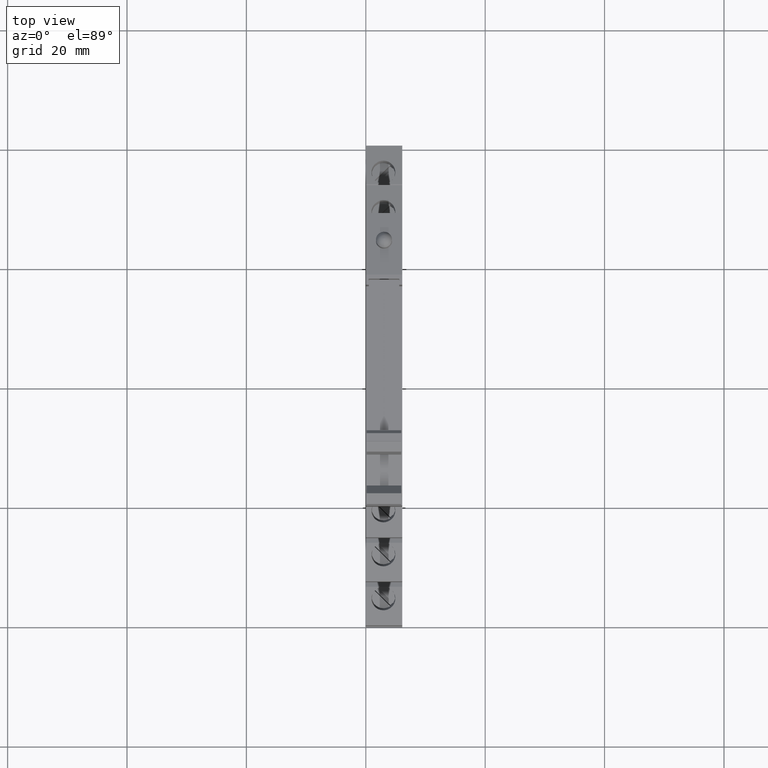
[diagram: clean part render]
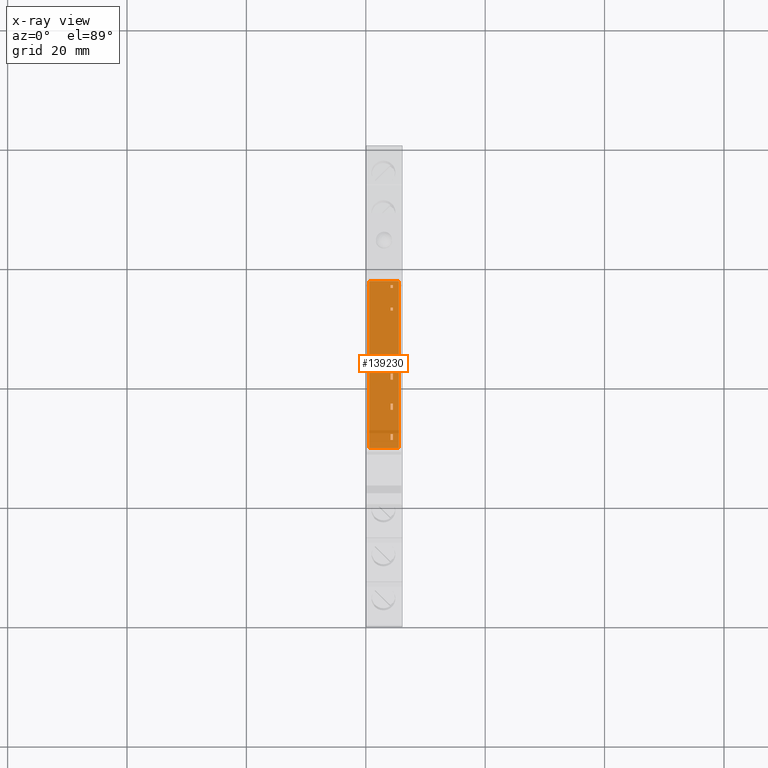
[diagram: x-ray — body ghosted, one internal face saturated and labeled with its STEP entity id]
A machine part, top view, then the same camera in x-ray: the body is ghosted and one INTERNAL B-rep face — a face not visible from any outside direction — is saturated and labeled: STEP entity #139230.
In plain terms, the highlighted planar face has unit normal (-0, -0, -1).
Its self-contained STEP definition (entity closure, byte-faithful):
#137140=CARTESIAN_POINT('',(0.,0.,0.));
#137150=DIRECTION('',(0.,0.,1.));
#137160=DIRECTION('',(1.,0.,0.));
#137170=AXIS2_PLACEMENT_3D('',#137140,#137150,#137160);
#137180=PLANE('',#137170);
#137190=CARTESIAN_POINT('',(0.,-1.4,0.));
#137200=DIRECTION('',(-1.,4.67566793217254E-17,0.));
#137210=VECTOR('',#137200,1.);
#137220=LINE('',#137190,#137210);
#137230=CARTESIAN_POINT('',(27.4499999999999,-1.4,0.));
#137240=VERTEX_POINT('',#137230);
#137250=CARTESIAN_POINT('',(26.9499999999999,-1.4,0.));
#137260=VERTEX_POINT('',#137250);
#137270=EDGE_CURVE('',#137240,#137260,#137220,.T.);
#137280=ORIENTED_EDGE('',*,*,#137270,.T.);
#137290=CARTESIAN_POINT('',(27.4499999999999,0.,0.));
#137300=DIRECTION('',(4.67566793217254E-17,1.,0.));
#137310=VECTOR('',#137300,1.);
#137320=LINE('',#137290,#137310);
#137330=CARTESIAN_POINT('',(27.4499999999999,-1.,0.));
#137340=VERTEX_POINT('',#137330);
#137350=EDGE_CURVE('',#137240,#137340,#137320,.T.);
#137360=ORIENTED_EDGE('',*,*,#137350,.F.);
#137370=CARTESIAN_POINT('',(0.,-1.,0.));
#137380=DIRECTION('',(1.,-4.67566793217254E-17,0.));
#137390=VECTOR('',#137380,1.);
#137400=LINE('',#137370,#137390);
#137410=CARTESIAN_POINT('',(26.9499999999999,-1.,0.));
#137420=VERTEX_POINT('',#137410);
#137430=EDGE_CURVE('',#137420,#137340,#137400,.T.);
#137440=ORIENTED_EDGE('',*,*,#137430,.T.);
#137450=CARTESIAN_POINT('',(26.9499999999999,0.,0.));
#137460=DIRECTION('',(-4.67566793217254E-17,-1.,0.));
#137470=VECTOR('',#137460,1.);
#137480=LINE('',#137450,#137470);
#137490=EDGE_CURVE('',#137420,#137260,#137480,.T.);
#137500=ORIENTED_EDGE('',*,*,#137490,.F.);
#137510=EDGE_LOOP('',(#137500,#137440,#137360,#137280));
#137520=FACE_BOUND('',#137510,.T.);
#137530=CARTESIAN_POINT('',(0.,-1.,0.));
#137540=DIRECTION('',(1.,-4.67566793217254E-17,0.));
#137550=VECTOR('',#137540,1.);
#137560=LINE('',#137530,#137550);
#137570=CARTESIAN_POINT('',(6.53999999999992,-1.,0.));
#137580=VERTEX_POINT('',#137570);
#137590=CARTESIAN_POINT('',(7.53999999999992,-1.,0.));
#137600=VERTEX_POINT('',#137590);
#137610=EDGE_CURVE('',#137580,#137600,#137560,.T.);
#137620=ORIENTED_EDGE('',*,*,#137610,.T.);
#137630=CARTESIAN_POINT('',(6.53999999999992,0.,0.));
#137640=DIRECTION('',(-4.67566793217254E-17,-1.,0.));
#137650=VECTOR('',#137640,1.);
#137660=LINE('',#137630,#137650);
#137670=CARTESIAN_POINT('',(6.53999999999992,-1.4,0.));
#137680=VERTEX_POINT('',#137670);
#137690=EDGE_CURVE('',#137580,#137680,#137660,.T.);
#137700=ORIENTED_EDGE('',*,*,#137690,.F.);
#137710=CARTESIAN_POINT('',(0.,-1.4,0.));
#137720=DIRECTION('',(-1.,4.67566793217254E-17,0.));
#137730=VECTOR('',#137720,1.);
#137740=LINE('',#137710,#137730);
#137750=CARTESIAN_POINT('',(7.53999999999992,-1.4,0.));
#137760=VERTEX_POINT('',#137750);
#137770=EDGE_CURVE('',#137760,#137680,#137740,.T.);
#137780=ORIENTED_EDGE('',*,*,#137770,.T.);
#137790=CARTESIAN_POINT('',(7.53999999999992,0.,0.));
#137800=DIRECTION('',(4.67566793217254E-17,1.,0.));
#137810=VECTOR('',#137800,1.);
#137820=LINE('',#137790,#137810);
#137830=EDGE_CURVE('',#137760,#137600,#137820,.T.);
#137840=ORIENTED_EDGE('',*,*,#137830,.F.);
#137850=EDGE_LOOP('',(#137840,#137780,#137700,#137620));
#137860=FACE_BOUND('',#137850,.T.);
#137870=CARTESIAN_POINT('',(0.,-1.,0.));
#137880=DIRECTION('',(1.,-4.67566793217254E-17,0.));
#137890=VECTOR('',#137880,1.);
#137900=LINE('',#137870,#137890);
#137910=CARTESIAN_POINT('',(1.50000000000007,-1.,0.));
#137920=VERTEX_POINT('',#137910);
#137930=CARTESIAN_POINT('',(2.50000000000007,-1.,0.));
#137940=VERTEX_POINT('',#137930);
#137950=EDGE_CURVE('',#137920,#137940,#137900,.T.);
#137960=ORIENTED_EDGE('',*,*,#137950,.T.);
#137970=CARTESIAN_POINT('',(1.50000000000007,0.,0.));
#137980=DIRECTION('',(-4.67566793217254E-17,-1.,0.));
#137990=VECTOR('',#137980,1.);
#138000=LINE('',#137970,#137990);
#138010=CARTESIAN_POINT('',(1.50000000000007,-1.4,0.));
#138020=VERTEX_POINT('',#138010);
#138030=EDGE_CURVE('',#137920,#138020,#138000,.T.);
#138040=ORIENTED_EDGE('',*,*,#138030,.F.);
#138050=CARTESIAN_POINT('',(0.,-1.4,0.));
#138060=DIRECTION('',(-1.,4.67566793217254E-17,0.));
#138070=VECTOR('',#138060,1.);
#138080=LINE('',#138050,#138070);
#138090=CARTESIAN_POINT('',(2.50000000000007,-1.4,0.));
#138100=VERTEX_POINT('',#138090);
#138110=EDGE_CURVE('',#138100,#138020,#138080,.T.);
#138120=ORIENTED_EDGE('',*,*,#138110,.T.);
#138130=CARTESIAN_POINT('',(2.50000000000007,0.,0.));
#138140=DIRECTION('',(4.67566793217254E-17,1.,0.));
#138150=VECTOR('',#138140,1.);
#138160=LINE('',#138130,#138150);
#138170=EDGE_CURVE('',#138100,#137940,#138160,.T.);
#138180=ORIENTED_EDGE('',*,*,#138170,.F.);
#138190=EDGE_LOOP('',(#138180,#138120,#138040,#137960));
#138200=FACE_BOUND('',#138190,.T.);
#138210=CARTESIAN_POINT('',(11.5799999999999,0.,0.));
#138220=DIRECTION('',(-4.67566793217254E-17,-1.,0.));
#138230=VECTOR('',#138220,1.);
#138240=LINE('',#138210,#138230);
#138250=CARTESIAN_POINT('',(11.5799999999999,-1.,0.));
#138260=VERTEX_POINT('',#138250);
#138270=CARTESIAN_POINT('',(11.5799999999999,-1.4,0.));
#138280=VERTEX_POINT('',#138270);
#138290=EDGE_CURVE('',#138260,#138280,#138240,.T.);
#138300=ORIENTED_EDGE('',*,*,#138290,.F.);
#138310=CARTESIAN_POINT('',(0.,-1.4,0.));
#138320=DIRECTION('',(-1.,4.67566793217254E-17,0.));
#138330=VECTOR('',#138320,1.);
#138340=LINE('',#138310,#138330);
#138350=CARTESIAN_POINT('',(12.5799999999999,-1.4,0.));
#138360=VERTEX_POINT('',#138350);
#138370=EDGE_CURVE('',#138360,#138280,#138340,.T.);
#138380=ORIENTED_EDGE('',*,*,#138370,.T.);
#138390=CARTESIAN_POINT('',(12.5799999999999,0.,0.));
#138400=DIRECTION('',(4.67566793217254E-17,1.,0.));
#138410=VECTOR('',#138400,1.);
#138420=LINE('',#138390,#138410);
#138430=CARTESIAN_POINT('',(12.5799999999999,-1.,0.));
#138440=VERTEX_POINT('',#138430);
#138450=EDGE_CURVE('',#138360,#138440,#138420,.T.);
#138460=ORIENTED_EDGE('',*,*,#138450,.F.);
#138470=CARTESIAN_POINT('',(0.,-1.,0.));
#138480=DIRECTION('',(1.,-4.67566793217254E-17,0.));
#138490=VECTOR('',#138480,1.);
#138500=LINE('',#138470,#138490);
#138510=EDGE_CURVE('',#138260,#138440,#138500,.T.);
#138520=ORIENTED_EDGE('',*,*,#138510,.T.);
#138530=EDGE_LOOP('',(#138520,#138460,#138380,#138300));
#138540=FACE_BOUND('',#138530,.T.);
#138550=CARTESIAN_POINT('',(23.67,0.,0.));
#138560=DIRECTION('',(4.67566793217254E-17,1.,0.));
#138570=VECTOR('',#138560,1.);
#138580=LINE('',#138550,#138570);
#138590=CARTESIAN_POINT('',(23.67,-1.4,0.));
#138600=VERTEX_POINT('',#138590);
#138610=CARTESIAN_POINT('',(23.67,-1.,0.));
#138620=VERTEX_POINT('',#138610);
#138630=EDGE_CURVE('',#138600,#138620,#138580,.T.);
#138640=ORIENTED_EDGE('',*,*,#138630,.F.);
#138650=CARTESIAN_POINT('',(0.,-1.,0.));
#138660=DIRECTION('',(1.,-4.67566793217254E-17,0.));
#138670=VECTOR('',#138660,1.);
#138680=LINE('',#138650,#138670);
#138690=CARTESIAN_POINT('',(23.17,-1.,0.));
#138700=VERTEX_POINT('',#138690);
#138710=EDGE_CURVE('',#138700,#138620,#138680,.T.);
#138720=ORIENTED_EDGE('',*,*,#138710,.T.);
#138730=CARTESIAN_POINT('',(23.17,0.,0.));
#138740=DIRECTION('',(-4.67566793217254E-17,-1.,0.));
#138750=VECTOR('',#138740,1.);
#138760=LINE('',#138730,#138750);
#138770=CARTESIAN_POINT('',(23.17,-1.4,0.));
#138780=VERTEX_POINT('',#138770);
#138790=EDGE_CURVE('',#138700,#138780,#138760,.T.);
#138800=ORIENTED_EDGE('',*,*,#138790,.F.);
#138810=CARTESIAN_POINT('',(0.,-1.4,0.));
#138820=DIRECTION('',(-1.,4.67566793217254E-17,0.));
#138830=VECTOR('',#138820,1.);
#138840=LINE('',#138810,#138830);
#138850=EDGE_CURVE('',#138600,#138780,#138840,.T.);
#138860=ORIENTED_EDGE('',*,*,#138850,.T.);
#138870=EDGE_LOOP('',(#138860,#138800,#138720,#138640));
#138880=FACE_BOUND('',#138870,.T.);
#138890=CARTESIAN_POINT('',(0.100000000000031,0.,0.));
#138900=DIRECTION('',(-4.67566793217254E-17,-1.,0.));
#138910=VECTOR('',#138900,1.);
#138920=LINE('',#138890,#138910);
#138930=CARTESIAN_POINT('',(0.100000000000031,0.,0.));
#138940=VERTEX_POINT('',#138930);
#138950=CARTESIAN_POINT('',(0.10000000000003,-5.,0.));
#138960=VERTEX_POINT('',#138950);
#138970=EDGE_CURVE('',#138940,#138960,#138920,.T.);
#138980=ORIENTED_EDGE('',*,*,#138970,.T.);
#138990=CARTESIAN_POINT('',(0.,0.,0.));
#139000=DIRECTION('',(1.,0.,0.));
#139010=VECTOR('',#139000,1.);
#139020=LINE('',#138990,#139010);
#139030=CARTESIAN_POINT('',(28.1,0.,0.));
#139040=VERTEX_POINT('',#139030);
#139050=EDGE_CURVE('',#138940,#139040,#139020,.T.);
#139060=ORIENTED_EDGE('',*,*,#139050,.F.);
#139070=CARTESIAN_POINT('',(28.1,0.,0.));
#139080=DIRECTION('',(0.,-1.,0.));
#139090=VECTOR('',#139080,1.);
#139100=LINE('',#139070,#139090);
#139110=CARTESIAN_POINT('',(28.1,-5.,0.));
#139120=VERTEX_POINT('',#139110);
#139130=EDGE_CURVE('',#139040,#139120,#139100,.T.);
#139140=ORIENTED_EDGE('',*,*,#139130,.F.);
#139150=CARTESIAN_POINT('',(0.,-5.,0.));
#139160=DIRECTION('',(-1.,0.,0.));
#139170=VECTOR('',#139160,1.);
#139180=LINE('',#139150,#139170);
#139190=EDGE_CURVE('',#139120,#138960,#139180,.T.);
#139200=ORIENTED_EDGE('',*,*,#139190,.F.);
#139210=EDGE_LOOP('',(#139200,#139140,#139060,#138980));
#139220=FACE_OUTER_BOUND('',#139210,.T.);
#139230=ADVANCED_FACE('',(#137520,#137860,#138200,#138540,#138880,
#139220),#137180,.T.);